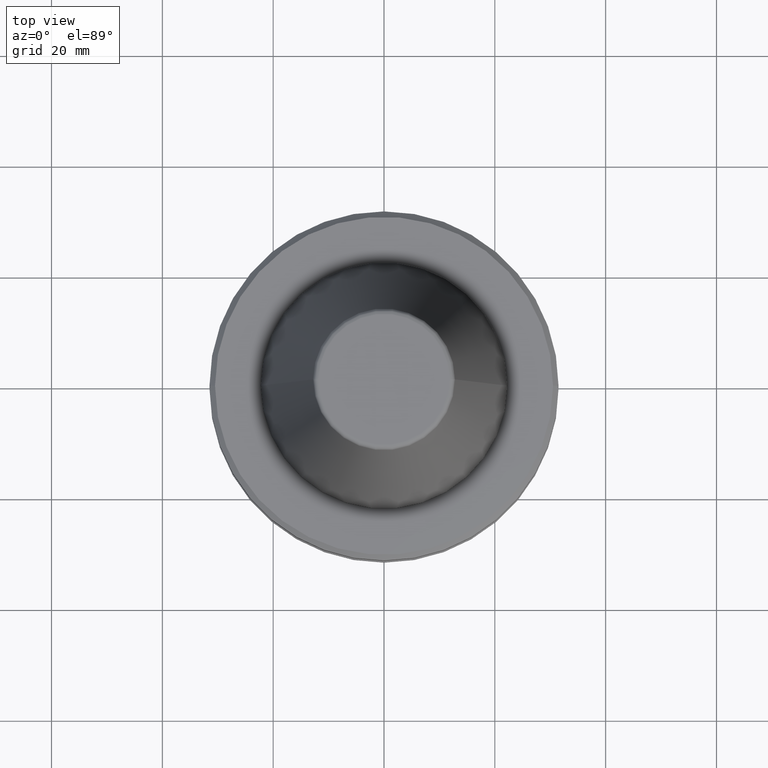
[diagram: clean part render]
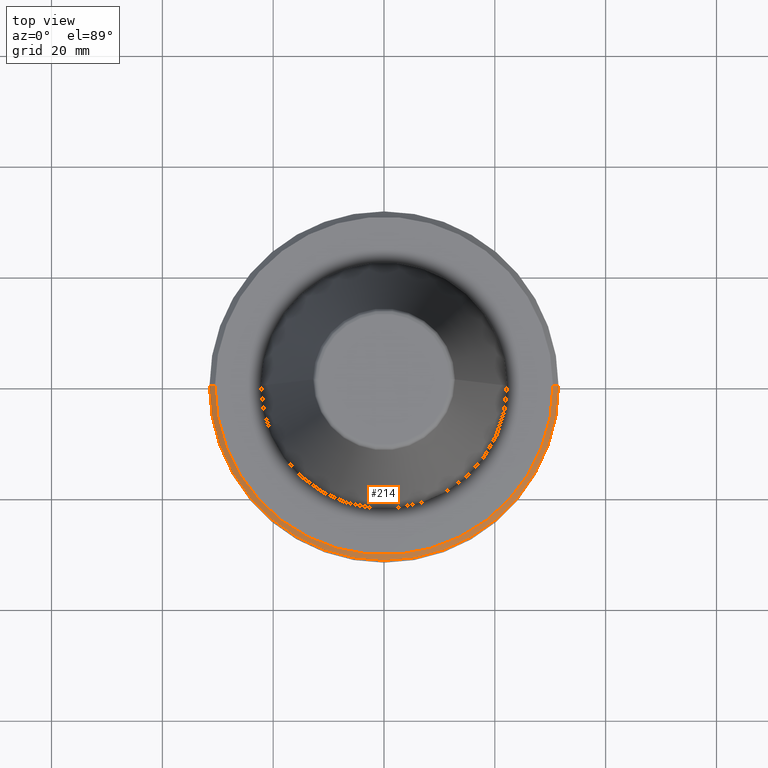
[diagram: same view with one face highlighted and labeled with its STEP entity id]
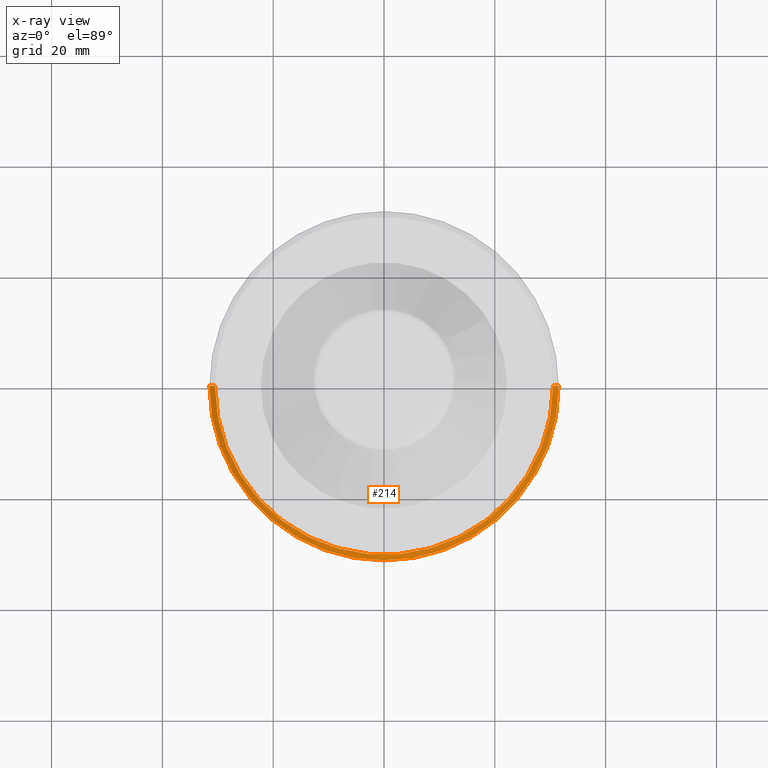
[diagram: x-ray of the same camera — body ghosted, the highlighted face saturated]
A machine part, top view. The second image highlights one B-rep face of the part: STEP entity #214.
The next image is the same camera in x-ray: the body ghosted, the highlighted face saturated — about 0% of this face is hidden behind the body in this view.
In plain terms, the highlighted conical surface has half-angle 45 deg.
Its self-contained STEP definition (entity closure, byte-faithful):
#86 = ORIENTED_EDGE ( 'NONE', *, *, #810, .F. ) ;
#110 = ORIENTED_EDGE ( 'NONE', *, *, #440, .T. ) ;
#113 = VERTEX_POINT ( 'NONE', #758 ) ;
#117 = DIRECTION ( 'NONE',  ( 0.7071067811866259500, 8.659560562355891800E-017, -0.7071067811864690800 ) ) ;
#124 = AXIS2_PLACEMENT_3D ( 'NONE', #459, #915, #827 ) ;
#134 = CARTESIAN_POINT ( 'NONE',  ( 0.0000000000000000000, 0.0000000000000000000, -2.000000000001556100 ) ) ;
#178 = DIRECTION ( 'NONE',  ( 1.000000000000000000, 0.0000000000000000000, 0.0000000000000000000 ) ) ;
#205 = CARTESIAN_POINT ( 'NONE',  ( -31.50000000000008500, 3.857637417314172900E-015, -3.000000000001446000 ) ) ;
#214 = ADVANCED_FACE ( 'NONE', ( #444 ), #773, .T. ) ;
#223 = VERTEX_POINT ( 'NONE', #205 ) ;
#225 = DIRECTION ( 'NONE',  ( 1.000000000000000000, 0.0000000000000000000, 0.0000000000000000000 ) ) ;
#226 = ORIENTED_EDGE ( 'NONE', *, *, #925, .T. ) ;
#248 = CARTESIAN_POINT ( 'NONE',  ( 31.50000000000008500, 3.857637417314172900E-015, -3.000000000001446000 ) ) ;
#279 = CIRCLE ( 'NONE', #840, 30.49999999999997200 ) ;
#321 = CARTESIAN_POINT ( 'NONE',  ( 31.50000000000008500, 0.0000000000000000000, -3.000000000001446000 ) ) ;
#335 = DIRECTION ( 'NONE',  ( -0.7071067811866259500, 0.0000000000000000000, -0.7071067811864690800 ) ) ;
#342 = VERTEX_POINT ( 'NONE', #321 ) ;
#349 = DIRECTION ( 'NONE',  ( -0.0000000000000000000, -0.0000000000000000000, 1.000000000000000000 ) ) ;
#415 = CARTESIAN_POINT ( 'NONE',  ( -31.50000000000008500, 0.0000000000000000000, -3.000000000001446000 ) ) ;
#422 = DIRECTION ( 'NONE',  ( -0.0000000000000000000, -0.0000000000000000000, 1.000000000000000000 ) ) ;
#440 = EDGE_CURVE ( 'NONE', #113, #223, #676, .T. ) ;
#444 = FACE_OUTER_BOUND ( 'NONE', #884, .T. ) ;
#459 = CARTESIAN_POINT ( 'NONE',  ( 0.0000000000000000000, 0.0000000000000000000, -3.000000000001446000 ) ) ;
#664 = AXIS2_PLACEMENT_3D ( 'NONE', #883, #349, #178 ) ;
#673 = EDGE_CURVE ( 'NONE', #113, #844, #279, .T. ) ;
#676 = LINE ( 'NONE', #415, #860 ) ;
#742 = CARTESIAN_POINT ( 'NONE',  ( 30.49999999999997200, 3.796405077356798300E-015, -2.000000000001556100 ) ) ;
#743 = CIRCLE ( 'NONE', #664, 31.50000000000008500 ) ;
#758 = CARTESIAN_POINT ( 'NONE',  ( -30.49999999999997200, 0.0000000000000000000, -2.000000000001556100 ) ) ;
#771 = VECTOR ( 'NONE', #117, 1000.000000000000100 ) ;
#773 = CONICAL_SURFACE ( 'NONE', #124, 31.50000000000008500, 0.7853981633975591900 ) ;
#810 = EDGE_CURVE ( 'NONE', #844, #342, #983, .T. ) ;
#827 = DIRECTION ( 'NONE',  ( -1.000000000000000000, 0.0000000000000000000, 0.0000000000000000000 ) ) ;
#840 = AXIS2_PLACEMENT_3D ( 'NONE', #134, #422, #225 ) ;
#844 = VERTEX_POINT ( 'NONE', #742 ) ;
#860 = VECTOR ( 'NONE', #335, 1000.000000000000100 ) ;
#883 = CARTESIAN_POINT ( 'NONE',  ( 0.0000000000000000000, 0.0000000000000000000, -3.000000000001446000 ) ) ;
#884 = EDGE_LOOP ( 'NONE', ( #86, #894, #110, #226 ) ) ;
#894 = ORIENTED_EDGE ( 'NONE', *, *, #673, .F. ) ;
#915 = DIRECTION ( 'NONE',  ( 0.0000000000000000000, 0.0000000000000000000, -1.000000000000000000 ) ) ;
#925 = EDGE_CURVE ( 'NONE', #223, #342, #743, .T. ) ;
#983 = LINE ( 'NONE', #248, #771 ) ;